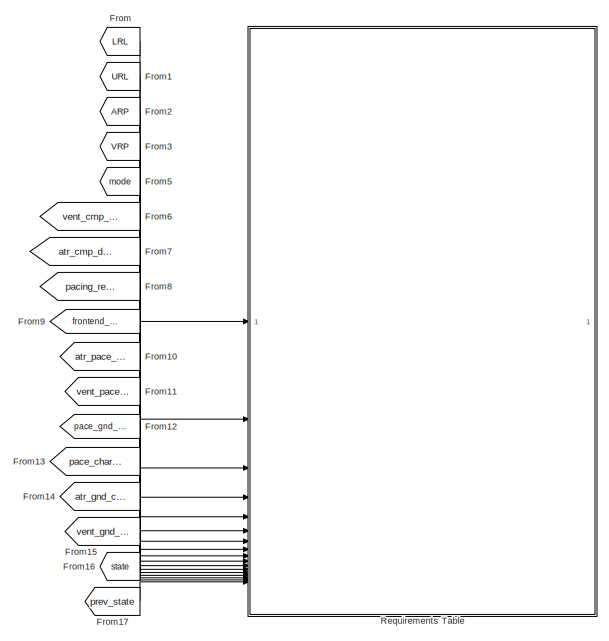
[diagram: root canvas - part 1/2, right side, full height]
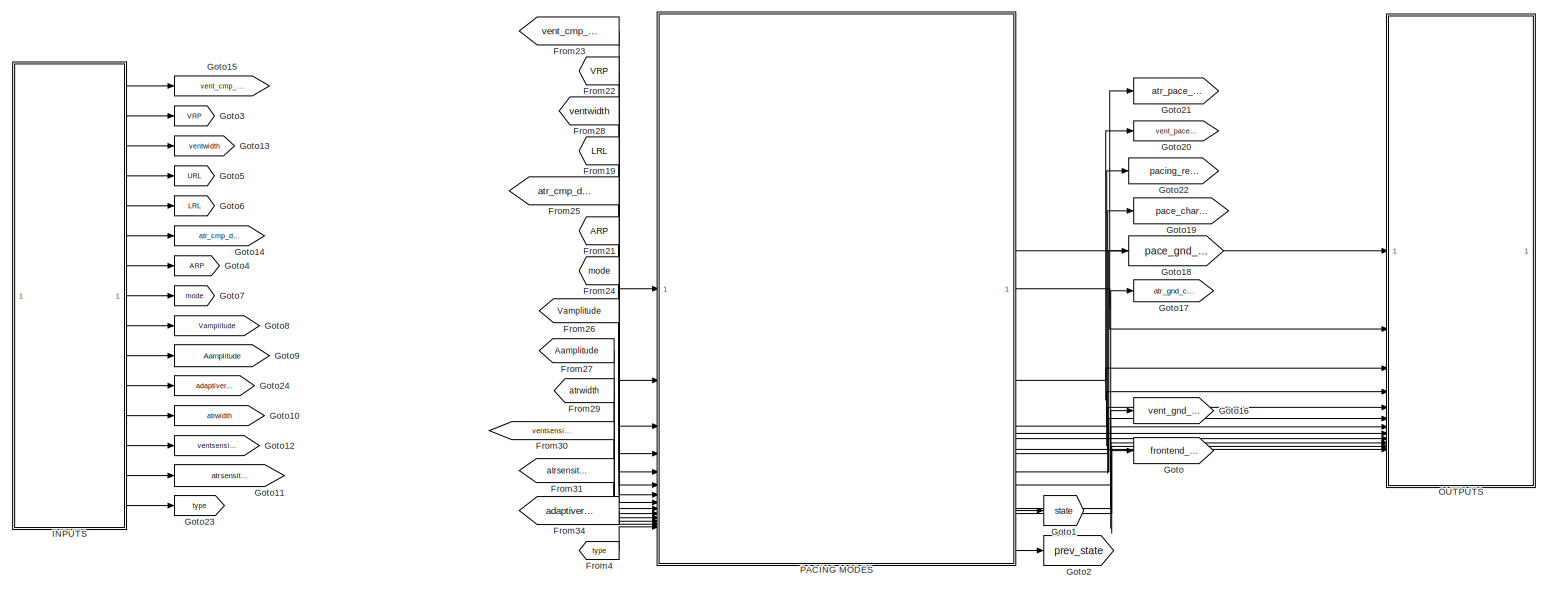
[diagram: root canvas - part 2/2, center side, full height]
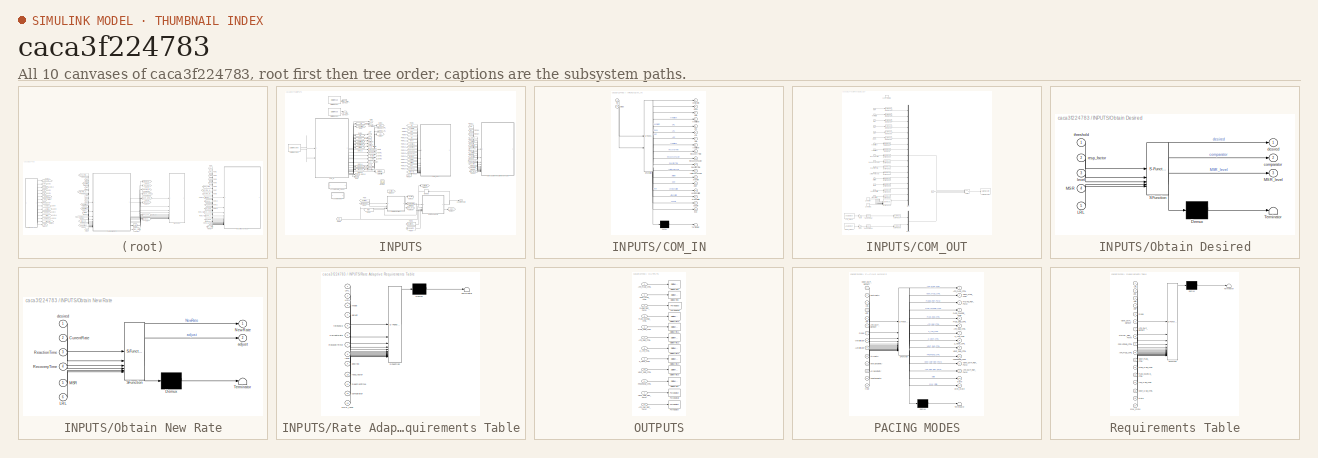
[diagram: thumbnail index - all 10 canvases of the model, root first then tree order]
MODEL slx_caca3f224783
KIND model
CONFIG AbsTol = auto
CONFIG EnableMultiTasking = on
CONFIG FixedStep = 1e-3
CONFIG MaxStep = auto
CONFIG MinStep = auto
CONFIG RelTol = 1e-3
CONFIG SampleTimeConstraint = Unconstrained
CONFIG SolverName = FixedStepAuto
CONFIG StartTime = 0.0
CONFIG StopTime = 2
BLOCK [From] From
  GotoTag = LRL
BLOCK [From] From1
  GotoTag = URL
BLOCK [From] From10
  GotoTag = atr_pace_ctrl
BLOCK [From] From11
  GotoTag = vent_pace_ctrl
BLOCK [From] From12
  GotoTag = pace_gnd_ctrl
BLOCK [From] From13
  GotoTag = pace_charge_ctrl
BLOCK [From] From14
  GotoTag = atr_gnd_ctrl
BLOCK [From] From15
  GotoTag = vent_gnd_ctrl
BLOCK [From] From16
  GotoTag = state
BLOCK [From] From17
  GotoTag = prev_state
BLOCK [From] From19
  GotoTag = LRL
BLOCK [From] From2
  GotoTag = ARP
BLOCK [From] From21
  GotoTag = ARP
BLOCK [From] From22
  GotoTag = VRP
BLOCK [From] From23
  GotoTag = vent_cmp_detect
BLOCK [From] From24
  GotoTag = mode
BLOCK [From] From25
  GotoTag = atr_cmp_detect
BLOCK [From] From26
  GotoTag = Vamplitude
BLOCK [From] From27
  GotoTag = Aamplitude
BLOCK [From] From28
  GotoTag = ventwidth
BLOCK [From] From29
  GotoTag = atrwidth
BLOCK [From] From3
  GotoTag = VRP
BLOCK [From] From30
  GotoTag = ventsensitivity
BLOCK [From] From31
  GotoTag = atrsensitivity
BLOCK [From] From34
  GotoTag = adaptiverate
BLOCK [From] From4
  GotoTag = type
BLOCK [From] From5
  GotoTag = mode
BLOCK [From] From6
  GotoTag = vent_cmp_detect
BLOCK [From] From7
  GotoTag = atr_cmp_detect
BLOCK [From] From8
  GotoTag = pacing_ref_pwm
BLOCK [From] From9
  GotoTag = frontend_ctrl
BLOCK [Goto] Goto
  GotoTag = frontend_ctrl
BLOCK [Goto] Goto1
  GotoTag = state
BLOCK [Goto] Goto10
  GotoTag = atrwidth
BLOCK [Goto] Goto11
  GotoTag = atrsensitivity
BLOCK [Goto] Goto12
  GotoTag = ventsensitivity
BLOCK [Goto] Goto13
  GotoTag = ventwidth
BLOCK [Goto] Goto14
  GotoTag = atr_cmp_detect
BLOCK [Goto] Goto15
  GotoTag = vent_cmp_detect
BLOCK [Goto] Goto16
  GotoTag = vent_gnd_ctrl
BLOCK [Goto] Goto17
  GotoTag = atr_gnd_ctrl
BLOCK [Goto] Goto18
  GotoTag = pace_gnd_ctrl
BLOCK [Goto] Goto19
  GotoTag = pace_charge_ctrl
BLOCK [Goto] Goto2
  GotoTag = prev_state
BLOCK [Goto] Goto20
  GotoTag = vent_pace_ctrl
BLOCK [Goto] Goto21
  GotoTag = atr_pace_ctrl
BLOCK [Goto] Goto22
  GotoTag = pacing_ref_pwm
BLOCK [Goto] Goto23
  GotoTag = type
BLOCK [Goto] Goto24
  GotoTag = adaptiverate
BLOCK [Goto] Goto3
  GotoTag = VRP
BLOCK [Goto] Goto4
  GotoTag = ARP
BLOCK [Goto] Goto5
  GotoTag = URL
BLOCK [Goto] Goto6
  GotoTag = LRL
BLOCK [Goto] Goto7
  GotoTag = mode
BLOCK [Goto] Goto8
  GotoTag = Vamplitude
BLOCK [Goto] Goto9
  GotoTag = Aamplitude
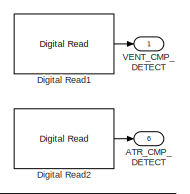
[diagram: INPUTS - part 1/4, top left region]
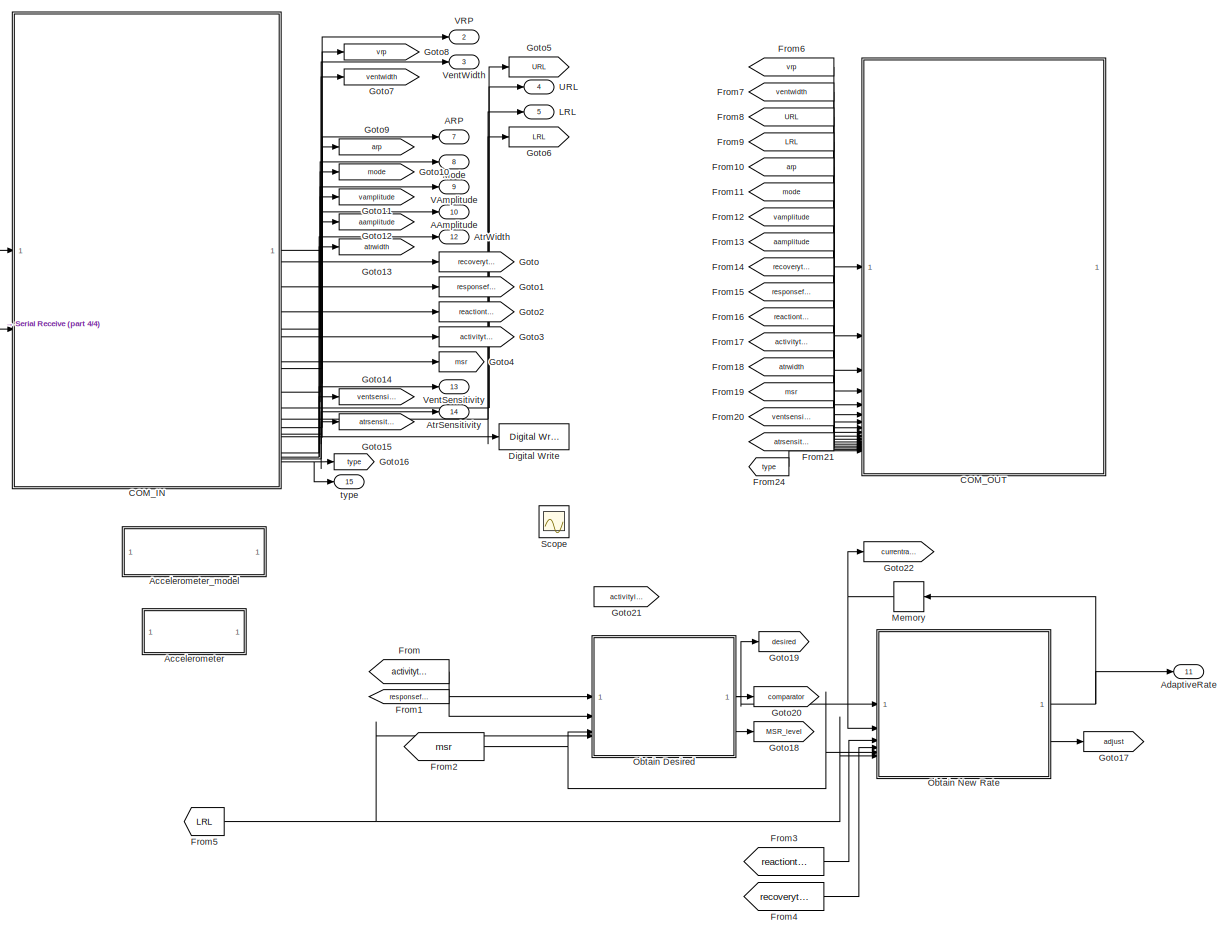
[diagram: INPUTS - part 2/4, center side, full height]
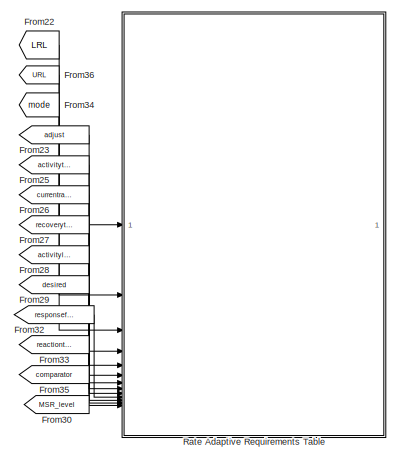
[diagram: INPUTS - part 3/4, middle right region]
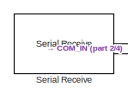
[diagram: INPUTS - part 4/4, middle left region]
BLOCK [SubSystem] INPUTS
BLOCK [Outport] INPUTS/AAmplitude
  OutDataTypeStr = double
  Port = 10
BLOCK [Outport] INPUTS/ARP
  OutDataTypeStr = double
  Port = 7
BLOCK [Outport] INPUTS/ATR_CMP_DETECT
  OutDataTypeStr = boolean
  Port = 6
BLOCK [SubSystem] INPUTS/Accelerometer
  Commented = on
  ReferencedSubsystem = accelerometer
BLOCK [ModelReference] INPUTS/Accelerometer_model
  Commented = on
  ModelNameDialog = accel
  ModelReferenceVersion = 2.0
BLOCK [Outport] INPUTS/AdaptiveRate
  Port = 11
BLOCK [Outport] INPUTS/AtrSensitivity
  Port = 14
BLOCK [Outport] INPUTS/AtrWidth
  OutDataTypeStr = int16
  Port = 12
BLOCK [SubSystem] INPUTS/COM_IN
  ErrorFcn = Stateflow.Translate.translate
  PermitHierarchicalResolution = ExplicitOnly
  PortSchema = {"entries":[{"content":{"sides":[{"content":{"connectorIds":["In1","In2"]},"type":"ConnectorPlacement.EquallySpacedRectSide","uuid":"eafe7878-2647-49a4-97cb-41e68478fa40"},{"content":{"connectorIds":["Out3","Out1","Out5","Out6","Out7","Out2","Out4","Out8","Out13","Out9","Out10","Out11","Out12","Out14","Out15","Out16","Out17","Out18"],"side":"RIGHT"},"type":"ConnectorPlacement.EquallySpacedRectSide...<+374ch>
  SFBlockType = Chart
  TreatAsAtomicUnit = on
BLOCK [Demux] INPUTS/COM_IN/ Demux 
  Outputs = 1
BLOCK [S-Function] INPUTS/COM_IN/ SFunction 
  EnableBusSupport = on
  FunctionName = sf_sfun
  PortCounts = [2 19]
  SFcnIsStateOwnerBlock = off
  SFunctionDeploymentMode = off
  Tag = Stateflow S-Function 7
BLOCK [Terminator] INPUTS/COM_IN/ Terminator 
BLOCK [Outport] INPUTS/COM_IN/AAmplitude
  Port = 8
BLOCK [Outport] INPUTS/COM_IN/ARP
  Port = 7
BLOCK [Outport] INPUTS/COM_IN/ActivityThreshold
  Port = 12
BLOCK [Outport] INPUTS/COM_IN/AtrSensitivity
  Port = 16
BLOCK [Outport] INPUTS/COM_IN/AtrWidth
  Port = 13
BLOCK [Outport] INPUTS/COM_IN/LRL
  Port = 6
BLOCK [Outport] INPUTS/COM_IN/MSR
  Port = 14
BLOCK [Outport] INPUTS/COM_IN/ReactionTime
  Port = 11
BLOCK [Outport] INPUTS/COM_IN/RecoveryTime
  Port = 9
BLOCK [Outport] INPUTS/COM_IN/ResponseFactor
  Port = 10
BLOCK [Inport] INPUTS/COM_IN/Rx
BLOCK [Outport] INPUTS/COM_IN/URL
  Port = 5
BLOCK [Outport] INPUTS/COM_IN/VAmplitude
  Port = 4
BLOCK [Outport] INPUTS/COM_IN/VRP
  Port = 3
BLOCK [Outport] INPUTS/COM_IN/VentSensitivity
  Port = 15
BLOCK [Outport] INPUTS/COM_IN/VentWidth
BLOCK [Outport] INPUTS/COM_IN/mode
  Port = 2
BLOCK [Inport] INPUTS/COM_IN/status
  Port = 2
BLOCK [Outport] INPUTS/COM_IN/type
  Port = 18
BLOCK [Outport] INPUTS/COM_IN/update
  Port = 17
BLOCK [SubSystem] INPUTS/COM_OUT
  TreatAsAtomicUnit = on
BLOCK [Inport] INPUTS/COM_OUT/AAmplitude
  OutDataTypeStr = double
  Port = 8
BLOCK [Inport] INPUTS/COM_OUT/ARP
  OutDataTypeStr = double
  Port = 5
BLOCK [Reference] INPUTS/COM_OUT/ATR_SIGNAL  REF=frdmk64flib/Analog Input
  SourceBlock = frdmk64flib/Analog Input
  SourceType = freedomk64f.AnalogInput
BLOCK [Inport] INPUTS/COM_OUT/ActivityThreshold
  OutDataTypeStr = double
  Port = 12
BLOCK [Inport] INPUTS/COM_OUT/AtrSensitivity
  OutDataTypeStr = double
  Port = 16
BLOCK [Inport] INPUTS/COM_OUT/AtrWidth
  OutDataTypeStr = int16
  Port = 13
BLOCK [Reference] INPUTS/COM_OUT/Byte Pack  REF=etargetslib/Byte Pack
  LibrarySourceBlock = embeddedtargetslib/Host Communication/Byte Pack
  SourceBlock = etargetslib/Byte Pack
  SourceType = Byte pack
BLOCK [Reference] INPUTS/COM_OUT/Byte Pack1  REF=etargetslib/Byte Pack
  LibrarySourceBlock = embeddedtargetslib/Host Communication/Byte Pack
  SourceBlock = etargetslib/Byte Pack
  SourceType = Byte pack
BLOCK [Reference] INPUTS/COM_OUT/Byte Pack10  REF=etargetslib/Byte Pack
  LibrarySourceBlock = embeddedtargetslib/Host Communication/Byte Pack
  SourceBlock = etargetslib/Byte Pack
  SourceType = Byte pack
BLOCK [Reference] INPUTS/COM_OUT/Byte Pack11  REF=etargetslib/Byte Pack
  LibrarySourceBlock = embeddedtargetslib/Host Communication/Byte Pack
  SourceBlock = etargetslib/Byte Pack
  SourceType = Byte pack
BLOCK [Reference] INPUTS/COM_OUT/Byte Pack12  REF=etargetslib/Byte Pack
  LibrarySourceBlock = embeddedtargetslib/Host Communication/Byte Pack
  SourceBlock = etargetslib/Byte Pack
  SourceType = Byte pack
BLOCK [Reference] INPUTS/COM_OUT/Byte Pack13  REF=etargetslib/Byte Pack
  LibrarySourceBlock = embeddedtargetslib/Host Communication/Byte Pack
  SourceBlock = etargetslib/Byte Pack
  SourceType = Byte pack
BLOCK [Reference] INPUTS/COM_OUT/Byte Pack14  REF=etargetslib/Byte Pack
  LibrarySourceBlock = embeddedtargetslib/Host Communication/Byte Pack
  SourceBlock = etargetslib/Byte Pack
  SourceType = Byte pack
BLOCK [Reference] INPUTS/COM_OUT/Byte Pack15  REF=etargetslib/Byte Pack
  LibrarySourceBlock = embeddedtargetslib/Host Communication/Byte Pack
  SourceBlock = etargetslib/Byte Pack
  SourceType = Byte pack
BLOCK [Reference] INPUTS/COM_OUT/Byte Pack16  REF=etargetslib/Byte Pack
  LibrarySourceBlock = embeddedtargetslib/Host Communication/Byte Pack
  SourceBlock = etargetslib/Byte Pack
  SourceType = Byte pack
BLOCK [Reference] INPUTS/COM_OUT/Byte Pack17  REF=etargetslib/Byte Pack
  LibrarySourceBlock = embeddedtargetslib/Host Communication/Byte Pack
  SourceBlock = etargetslib/Byte Pack
  SourceType = Byte pack
BLOCK [Reference] INPUTS/COM_OUT/Byte Pack18  REF=etargetslib/Byte Pack
  LibrarySourceBlock = embeddedtargetslib/Host Communication/Byte Pack
  SourceBlock = etargetslib/Byte Pack
  SourceType = Byte pack
BLOCK [Reference] INPUTS/COM_OUT/Byte Pack2  REF=etargetslib/Byte Pack
  LibrarySourceBlock = embeddedtargetslib/Host Communication/Byte Pack
  SourceBlock = etargetslib/Byte Pack
  SourceType = Byte pack
BLOCK [Reference] INPUTS/COM_OUT/Byte Pack3  REF=etargetslib/Byte Pack
  LibrarySourceBlock = embeddedtargetslib/Host Communication/Byte Pack
  SourceBlock = etargetslib/Byte Pack
  SourceType = Byte pack
BLOCK [Reference] INPUTS/COM_OUT/Byte Pack4  REF=etargetslib/Byte Pack
  LibrarySourceBlock = embeddedtargetslib/Host Communication/Byte Pack
  SourceBlock = etargetslib/Byte Pack
  SourceType = Byte pack
BLOCK [Reference] INPUTS/COM_OUT/Byte Pack5  REF=etargetslib/Byte Pack
  LibrarySourceBlock = embeddedtargetslib/Host Communication/Byte Pack
  SourceBlock = etargetslib/Byte Pack
  SourceType = Byte pack
BLOCK [Reference] INPUTS/COM_OUT/Byte Pack6  REF=etargetslib/Byte Pack
  LibrarySourceBlock = embeddedtargetslib/Host Communication/Byte Pack
  SourceBlock = etargetslib/Byte Pack
  SourceType = Byte pack
BLOCK [Reference] INPUTS/COM_OUT/Byte Pack7  REF=etargetslib/Byte Pack
  LibrarySourceBlock = embeddedtargetslib/Host Communication/Byte Pack
  SourceBlock = etargetslib/Byte Pack
  SourceType = Byte pack
BLOCK [Reference] INPUTS/COM_OUT/Byte Pack8  REF=etargetslib/Byte Pack
  LibrarySourceBlock = embeddedtargetslib/Host Communication/Byte Pack
  SourceBlock = etargetslib/Byte Pack
  SourceType = Byte pack
BLOCK [Reference] INPUTS/COM_OUT/Byte Pack9  REF=etargetslib/Byte Pack
  LibrarySourceBlock = embeddedtargetslib/Host Communication/Byte Pack
  SourceBlock = etargetslib/Byte Pack
  SourceType = Byte pack
BLOCK [Constant] INPUTS/COM_OUT/Constant
  OutDataTypeStr = double
BLOCK [Constant] INPUTS/COM_OUT/Constant1
  OutDataTypeStr = int16
BLOCK [Gain] INPUTS/COM_OUT/Gain
  Gain = 5
BLOCK [Gain] INPUTS/COM_OUT/Gain1
  Gain = 5
BLOCK [Inport] INPUTS/COM_OUT/LRL
  OutDataTypeStr = double
  Port = 4
BLOCK [Inport] INPUTS/COM_OUT/MSR
  OutDataTypeStr = double
  Port = 14
BLOCK [Mux] INPUTS/COM_OUT/Mux
  DisplayOption = bar
  Inputs = 17
BLOCK [Mux] INPUTS/COM_OUT/Mux1
  DisplayOption = bar
  Inputs = 2
BLOCK [Inport] INPUTS/COM_OUT/ReactionTime
  OutDataTypeStr = double
  Port = 11
BLOCK [Inport] INPUTS/COM_OUT/RecoveryTime
  OutDataTypeStr = double
  Port = 9
BLOCK [Inport] INPUTS/COM_OUT/ResponseFactor
  OutDataTypeStr = double
  Port = 10
BLOCK [Reference] INPUTS/COM_OUT/Serial Transmit  REF=frdmk64flib/Serial Transmit
  SourceBlock = frdmk64flib/Serial Transmit
  SourceType = freedomk64f.SCIWrite
BLOCK [Switch] INPUTS/COM_OUT/Switch
  Criteria = u2 > Threshold
  InputSameDT = off
  SaturateOnIntegerOverflow = off
BLOCK [Reference] INPUTS/COM_OUT/Tapped Delay  REF=simulink/Discrete/Tapped Delay
  SourceBlock = simulink/Discrete/Tapped Delay
  SourceType = Tapped Delay Line
BLOCK [Reference] INPUTS/COM_OUT/Tapped Delay1  REF=simulink/Discrete/Tapped Delay
  SourceBlock = simulink/Discrete/Tapped Delay
  SourceType = Tapped Delay Line
BLOCK [Inport] INPUTS/COM_OUT/URL
  OutDataTypeStr = double
  Port = 3
BLOCK [Inport] INPUTS/COM_OUT/VAmplitude
  OutDataTypeStr = double
  Port = 7
BLOCK [Reference] INPUTS/COM_OUT/VENT_SIGNAL  REF=frdmk64flib/Analog Input
  SourceBlock = frdmk64flib/Analog Input
  SourceType = freedomk64f.AnalogInput
BLOCK [Inport] INPUTS/COM_OUT/VRP
  OutDataTypeStr = double
BLOCK [Inport] INPUTS/COM_OUT/VentSensitivity
  OutDataTypeStr = double
  Port = 15
BLOCK [Inport] INPUTS/COM_OUT/VentWidth
  OutDataTypeStr = int16
  Port = 2
BLOCK [Inport] INPUTS/COM_OUT/mode
  OutDataTypeStr = int16
  Port = 6
BLOCK [TriggerPort] INPUTS/COM_OUT/send_params
  FunctionName = send_params
  IsSimulinkFunction = on
  StatesWhenEnabling = held
  TriggerType = function-call
  VariantControl = (inherit)
BLOCK [Inport] INPUTS/COM_OUT/type
  Port = 17
BLOCK [Reference] INPUTS/Digital Read1  REF=frdmk64flib/Digital Read
  SourceBlock = frdmk64flib/Digital Read
  SourceType = freedomk64f.DigitalRead
BLOCK [Reference] INPUTS/Digital Read2  REF=frdmk64flib/Digital Read
  SourceBlock = frdmk64flib/Digital Read
  SourceType = freedomk64f.DigitalRead
BLOCK [Reference] INPUTS/Digital Write  REF=frdmk64flib/Digital Write
  SourceBlock = frdmk64flib/Digital Write
  SourceType = freedomk64f.DigitalWrite
BLOCK [From] INPUTS/From
  GotoTag = activitythresh
BLOCK [From] INPUTS/From1
  GotoTag = responsefactor
BLOCK [From] INPUTS/From10
  GotoTag = arp
BLOCK [From] INPUTS/From11
  GotoTag = mode
BLOCK [From] INPUTS/From12
  GotoTag = vamplitude
BLOCK [From] INPUTS/From13
  GotoTag = aamplitude
BLOCK [From] INPUTS/From14
  GotoTag = recoverytime
BLOCK [From] INPUTS/From15
  GotoTag = responsefactor
BLOCK [From] INPUTS/From16
  GotoTag = reactiontime
BLOCK [From] INPUTS/From17
  GotoTag = activitythresh
BLOCK [From] INPUTS/From18
  GotoTag = atrwidth
BLOCK [From] INPUTS/From19
  GotoTag = msr
BLOCK [From] INPUTS/From2
  GotoTag = msr
BLOCK [From] INPUTS/From20
  GotoTag = ventsensitivity
BLOCK [From] INPUTS/From21
  GotoTag = atrsensitivity
BLOCK [From] INPUTS/From22
  GotoTag = LRL
BLOCK [From] INPUTS/From23
  GotoTag = adjust
BLOCK [From] INPUTS/From24
  GotoTag = type
BLOCK [From] INPUTS/From25
  GotoTag = activitythresh
BLOCK [From] INPUTS/From26
  GotoTag = currentrate
BLOCK [From] INPUTS/From27
  GotoTag = recoverytime
BLOCK [From] INPUTS/From28
  GotoTag = activitylevel
BLOCK [From] INPUTS/From29
  GotoTag = desired
BLOCK [From] INPUTS/From3
  GotoTag = reactiontime
BLOCK [From] INPUTS/From30
  GotoTag = MSR_level
BLOCK [From] INPUTS/From32
  GotoTag = responsefactor
BLOCK [From] INPUTS/From33
  GotoTag = reactiontime
BLOCK [From] INPUTS/From34
  GotoTag = mode
BLOCK [From] INPUTS/From35
  GotoTag = comparator
BLOCK [From] INPUTS/From36
  GotoTag = URL
BLOCK [From] INPUTS/From4
  GotoTag = recoverytime
BLOCK [From] INPUTS/From5
  GotoTag = LRL
BLOCK [From] INPUTS/From6
  GotoTag = vrp
BLOCK [From] INPUTS/From7
  GotoTag = ventwidth
BLOCK [From] INPUTS/From8
  GotoTag = URL
BLOCK [From] INPUTS/From9
  GotoTag = LRL
BLOCK [Goto] INPUTS/Goto
  GotoTag = recoverytime
BLOCK [Goto] INPUTS/Goto1
  GotoTag = responsefactor
BLOCK [Goto] INPUTS/Goto10
  GotoTag = mode
BLOCK [Goto] INPUTS/Goto11
  GotoTag = vamplitude
BLOCK [Goto] INPUTS/Goto12
  GotoTag = aamplitude
BLOCK [Goto] INPUTS/Goto13
  GotoTag = atrwidth
BLOCK [Goto] INPUTS/Goto14
  GotoTag = ventsensitivity
BLOCK [Goto] INPUTS/Goto15
  GotoTag = atrsensitivity
BLOCK [Goto] INPUTS/Goto16
  GotoTag = type
BLOCK [Goto] INPUTS/Goto17
  GotoTag = adjust
BLOCK [Goto] INPUTS/Goto18
  GotoTag = MSR_level
BLOCK [Goto] INPUTS/Goto19
  GotoTag = desired
BLOCK [Goto] INPUTS/Goto2
  GotoTag = reactiontime
BLOCK [Goto] INPUTS/Goto20
  GotoTag = comparator
BLOCK [Goto] INPUTS/Goto21
  GotoTag = activitylevel
BLOCK [Goto] INPUTS/Goto22
  GotoTag = currentrate
BLOCK [Goto] INPUTS/Goto3
  GotoTag = activitythresh
BLOCK [Goto] INPUTS/Goto4
  GotoTag = msr
BLOCK [Goto] INPUTS/Goto5
  GotoTag = URL
BLOCK [Goto] INPUTS/Goto6
  GotoTag = LRL
BLOCK [Goto] INPUTS/Goto7
  GotoTag = ventwidth
BLOCK [Goto] INPUTS/Goto8
  GotoTag = vrp
BLOCK [Goto] INPUTS/Goto9
  GotoTag = arp
BLOCK [Outport] INPUTS/LRL
  OutDataTypeStr = double
  Port = 5
BLOCK [Memory] INPUTS/Memory
  InheritSampleTime = on
BLOCK [Outport] INPUTS/Mode
  OutDataTypeStr = int16
  Port = 8
BLOCK [SubSystem] INPUTS/Obtain Desired
  ErrorFcn = Stateflow.Translate.translate
  PermitHierarchicalResolution = ExplicitOnly
  PortSchema = {"entries":[{"content":{"sides":[{"content":{"connectorIds":["In3","In1","In2","In5","In4"]},"type":"ConnectorPlacement.EquallySpacedRectSide","uuid":"5c134849-3d1d-4c56-8571-ceae08da9f45"},{"content":{"connectorIds":["Out1","Out2","Out3"],"side":"RIGHT"},"type":"ConnectorPlacement.EquallySpacedRectSide","uuid":"7618640d-b82a-4535-8229-36335d1597eb"},{"content":{"connectorIds":[],"side":"TOP"},"ty...<+278ch>
  SFBlockType = Chart
  TreatAsAtomicUnit = on
BLOCK [Demux] INPUTS/Obtain Desired/ Demux 
  Outputs = 1
BLOCK [S-Function] INPUTS/Obtain Desired/ SFunction 
  EnableBusSupport = on
  FunctionName = sf_sfun
  PortCounts = [5 4]
  SFcnIsStateOwnerBlock = off
  SFunctionDeploymentMode = off
  Tag = Stateflow S-Function 5
BLOCK [Terminator] INPUTS/Obtain Desired/ Terminator 
BLOCK [Inport] INPUTS/Obtain Desired/LRL
  Port = 5
BLOCK [Inport] INPUTS/Obtain Desired/MSR
  Port = 4
BLOCK [Outport] INPUTS/Obtain Desired/MSR_level
  Port = 3
BLOCK [Outport] INPUTS/Obtain Desired/comparator
  Port = 2
BLOCK [Outport] INPUTS/Obtain Desired/desired
BLOCK [Inport] INPUTS/Obtain Desired/level
  Port = 3
BLOCK [Inport] INPUTS/Obtain Desired/resp_factor
  Port = 2
BLOCK [Inport] INPUTS/Obtain Desired/threshold
BLOCK [SubSystem] INPUTS/Obtain New Rate
  ErrorFcn = Stateflow.Translate.translate
  PermitHierarchicalResolution = ExplicitOnly
  PortSchema = {"entries":[{"content":{"sides":[{"content":{"connectorIds":["In2","In1","In5","In6","In3","In4"]},"type":"ConnectorPlacement.EquallySpacedRectSide","uuid":"1d91cfe0-cd55-4bdf-aa16-d6a917e51e7e"},{"content":{"connectorIds":["Out1","Out2"],"side":"RIGHT"},"type":"ConnectorPlacement.EquallySpacedRectSide","uuid":"e994e035-8773-49d5-b660-bbaeb9e2bece"},{"content":{"connectorIds":[],"side":"TOP"},"typ...<+277ch>
  SFBlockType = Chart
  TreatAsAtomicUnit = on
BLOCK [Demux] INPUTS/Obtain New Rate/ Demux 
  Outputs = 1
BLOCK [S-Function] INPUTS/Obtain New Rate/ SFunction 
  EnableBusSupport = on
  FunctionName = sf_sfun
  PortCounts = [6 3]
  SFcnIsStateOwnerBlock = off
  SFunctionDeploymentMode = off
  Tag = Stateflow S-Function 6
BLOCK [Terminator] INPUTS/Obtain New Rate/ Terminator 
BLOCK [Inport] INPUTS/Obtain New Rate/CurrentRate
  Port = 2
BLOCK [Inport] INPUTS/Obtain New Rate/LRL
  Port = 6
BLOCK [Inport] INPUTS/Obtain New Rate/MSR
  Port = 5
BLOCK [Outport] INPUTS/Obtain New Rate/NewRate
BLOCK [Inport] INPUTS/Obtain New Rate/ReactionTime
  Port = 3
BLOCK [Inport] INPUTS/Obtain New Rate/RecoveryTime
  Port = 4
BLOCK [Outport] INPUTS/Obtain New Rate/adjust
  Port = 2
BLOCK [Inport] INPUTS/Obtain New Rate/desired
BLOCK [SubSystem] INPUTS/Rate Adaptive Requirements Table
  Commented = on
  ErrorFcn = Stateflow.Translate.translate
  PermitHierarchicalResolution = ExplicitOnly
  SFBlockType = Requirements Table
  TreatAsAtomicUnit = on
BLOCK [Demux] INPUTS/Rate Adaptive Requirements Table/ Demux 
  Outputs = 1
BLOCK [S-Function] INPUTS/Rate Adaptive Requirements Table/ SFunction 
  EnableBusSupport = on
  FunctionName = sf_sfun
  PortCounts = [13 1]
  SFcnIsStateOwnerBlock = off
  SFunctionDeploymentMode = off
  Tag = Stateflow S-Function 1
BLOCK [Terminator] INPUTS/Rate Adaptive Requirements Table/ Terminator 
BLOCK [Inport] INPUTS/Rate Adaptive Requirements Table/CurrentRate
  Port = 6
BLOCK [Inport] INPUTS/Rate Adaptive Requirements Table/LRL
BLOCK [Inport] INPUTS/Rate Adaptive Requirements Table/MSR_level
  Port = 13
BLOCK [Inport] INPUTS/Rate Adaptive Requirements Table/ReactionTime
  Port = 11
BLOCK [Inport] INPUTS/Rate Adaptive Requirements Table/RecoveryTime
  Port = 7
BLOCK [Inport] INPUTS/Rate Adaptive Requirements Table/URL
  Port = 2
BLOCK [Inport] INPUTS/Rate Adaptive Requirements Table/adjust
  Port = 4
BLOCK [Inport] INPUTS/Rate Adaptive Requirements Table/comparator
  Port = 12
BLOCK [Inport] INPUTS/Rate Adaptive Requirements Table/desired
  Port = 9
BLOCK [Inport] INPUTS/Rate Adaptive Requirements Table/level
  Port = 8
BLOCK [Inport] INPUTS/Rate Adaptive Requirements Table/mode
  Port = 3
BLOCK [Inport] INPUTS/Rate Adaptive Requirements Table/resp_factor
  Port = 10
BLOCK [Inport] INPUTS/Rate Adaptive Requirements Table/threshold
  Port = 5
BLOCK [Scope] INPUTS/Scope
  Floating = off
  NumInputPorts = 1
  ScopeSpecificationString = Simulink.scopes.TimeScopeBlockCfg('CurrentConfiguration', extmgr.ConfigurationSet(extmgr.Configuration('Core','General UI',true),extmgr.Configuration('Core','Source UI',true),extmgr.Configuration('Sources','WiredSimulink',true),extmgr.Configuration('Visuals','Time Domain',true),extmgr.Configuration('Tools','Plot Navigation',true),extmgr.Configuration('Tools','Measurements',true)),'Version','2022b'...<+1ch>
BLOCK [Reference] INPUTS/Serial Receive  REF=frdmk64flib/Serial Receive
  SourceBlock = frdmk64flib/Serial Receive
  SourceType = freedomk64f.SCIRead
BLOCK [Outport] INPUTS/URL
  OutDataTypeStr = double
  Port = 4
BLOCK [Outport] INPUTS/VAmplitude
  OutDataTypeStr = double
  Port = 9
BLOCK [Outport] INPUTS/VENT_CMP_DETECT
  OutDataTypeStr = boolean
BLOCK [Outport] INPUTS/VRP
  OutDataTypeStr = double
  Port = 2
BLOCK [Outport] INPUTS/VentSensitivity
  Port = 13
BLOCK [Outport] INPUTS/VentWidth
  OutDataTypeStr = int16
  Port = 3
BLOCK [Outport] INPUTS/type
  Port = 15
BLOCK [SubSystem] OUTPUTS
BLOCK [Inport] OUTPUTS/ATR_CMP_REF_PWM
  OutDataTypeStr = double
  Port = 12
BLOCK [Inport] OUTPUTS/ATR_GND_CTRL
  OutDataTypeStr = boolean
  Port = 7
BLOCK [Inport] OUTPUTS/ATR_PACE_CTRL
  OutDataTypeStr = boolean
  Port = 2
BLOCK [Reference] OUTPUTS/Digital Write1  REF=frdmk64flib/Digital Write
  SourceBlock = frdmk64flib/Digital Write
  SourceType = freedomk64f.DigitalWrite
BLOCK [Reference] OUTPUTS/Digital Write10  REF=frdmk64flib/Digital Write
  SourceBlock = frdmk64flib/Digital Write
  SourceType = freedomk64f.DigitalWrite
BLOCK [Reference] OUTPUTS/Digital Write11  REF=frdmk64flib/Digital Write
  SourceBlock = frdmk64flib/Digital Write
  SourceType = freedomk64f.DigitalWrite
BLOCK [Reference] OUTPUTS/Digital Write12  REF=frdmk64flib/Digital Write
  SourceBlock = frdmk64flib/Digital Write
  SourceType = freedomk64f.DigitalWrite
BLOCK [Reference] OUTPUTS/Digital Write13  REF=frdmk64flib/Digital Write
  SourceBlock = frdmk64flib/Digital Write
  SourceType = freedomk64f.DigitalWrite
BLOCK [Reference] OUTPUTS/Digital Write14  REF=frdmk64flib/Digital Write
  SourceBlock = frdmk64flib/Digital Write
  SourceType = freedomk64f.DigitalWrite
BLOCK [Reference] OUTPUTS/Digital Write15  REF=frdmk64flib/Digital Write
  SourceBlock = frdmk64flib/Digital Write
  SourceType = freedomk64f.DigitalWrite
BLOCK [Reference] OUTPUTS/Digital Write8  REF=frdmk64flib/Digital Write
  SourceBlock = frdmk64flib/Digital Write
  SourceType = freedomk64f.DigitalWrite
BLOCK [Reference] OUTPUTS/Digital Write9  REF=frdmk64flib/Digital Write
  SourceBlock = frdmk64flib/Digital Write
  SourceType = freedomk64f.DigitalWrite
BLOCK [Inport] OUTPUTS/FRONTEND_CTRL
  OutDataTypeStr = boolean
  Port = 11
BLOCK [Inport] OUTPUTS/PACE_CHARGE_CTRL
  OutDataTypeStr = boolean
  Port = 5
BLOCK [Inport] OUTPUTS/PACE_GND_CTRL
  OutDataTypeStr = boolean
  Port = 6
BLOCK [Inport] OUTPUTS/PACING_REF_PWM
  OutDataTypeStr = double
  Port = 4
BLOCK [Reference] OUTPUTS/PWM Output  REF=frdmk64flib/PWM Output
  SourceBlock = frdmk64flib/PWM Output
  SourceType = freedomk64f.PWMOutput
BLOCK [Reference] OUTPUTS/PWM Output2  REF=frdmk64flib/PWM Output
  SourceBlock = frdmk64flib/PWM Output
  SourceType = freedomk64f.PWMOutput
BLOCK [Reference] OUTPUTS/PWM Output3  REF=frdmk64flib/PWM Output
  SourceBlock = frdmk64flib/PWM Output
  SourceType = freedomk64f.PWMOutput
BLOCK [Inport] OUTPUTS/VENT_CMP_REF_PWM
  OutDataTypeStr = double
BLOCK [Inport] OUTPUTS/VENT_GND_CTRL
  OutDataTypeStr = boolean
  Port = 10
BLOCK [Inport] OUTPUTS/VENT_PACE_CTRL
  OutDataTypeStr = boolean
  Port = 3
BLOCK [Inport] OUTPUTS/Z_ATR_CTRL
  OutDataTypeStr = boolean
  Port = 8
BLOCK [Inport] OUTPUTS/Z_VENT_CTRL
  OutDataTypeStr = boolean
  Port = 9
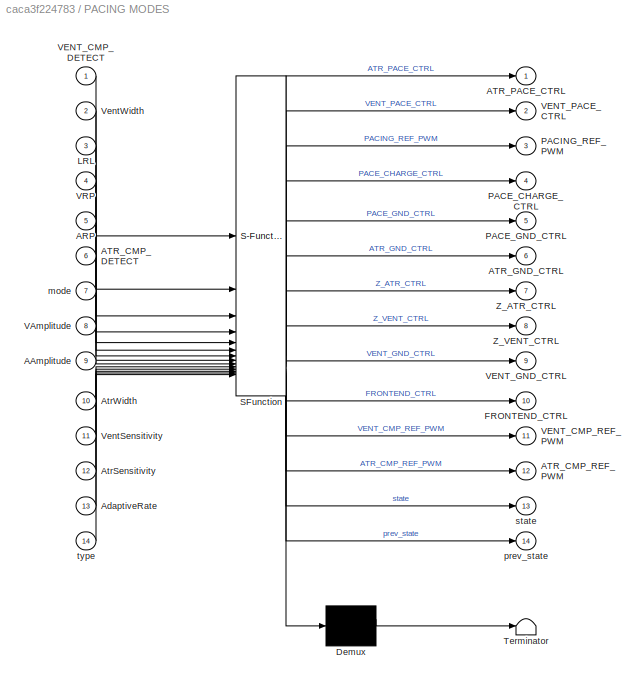
BLOCK [SubSystem] PACING MODES
  ErrorFcn = Stateflow.Translate.translate
  PermitHierarchicalResolution = ExplicitOnly
  PortSchema = {"entries":[{"content":{"sides":[{"content":{"connectorIds":["In1","In4","In2","In3","In6","In5","In7","In8","In9","In10","In11","In12","In13","In14"]},"type":"ConnectorPlacement.EquallySpacedRectSide","uuid":"24afec03-bc13-4065-9064-27bef3c43f7a"},{"content":{"connectorIds":["Out11","Out1","Out2","Out3","Out4","Out5","Out6","Out7","Out8","Out9","Out10","Out12","Out13","Out14"],"side":"RIGHT"},"ty...<+563ch>
  SFBlockType = Chart
  TreatAsAtomicUnit = on
BLOCK [Demux] PACING MODES/ Demux 
  Outputs = 1
BLOCK [S-Function] PACING MODES/ SFunction 
  EnableBusSupport = on
  FunctionName = sf_sfun
  PortCounts = [14 15]
  SFcnIsStateOwnerBlock = off
  SFunctionDeploymentMode = off
  Tag = Stateflow S-Function 3
BLOCK [Terminator] PACING MODES/ Terminator 
BLOCK [Inport] PACING MODES/AAmplitude
  Port = 9
BLOCK [Inport] PACING MODES/ARP
  Port = 5
BLOCK [Inport] PACING MODES/ATR_CMP_DETECT
  Port = 6
BLOCK [Outport] PACING MODES/ATR_CMP_REF_PWM
  Port = 12
BLOCK [Outport] PACING MODES/ATR_GND_CTRL
  Port = 6
BLOCK [Outport] PACING MODES/ATR_PACE_CTRL
BLOCK [Inport] PACING MODES/AdaptiveRate
  Port = 13
BLOCK [Inport] PACING MODES/AtrSensitivity
  Port = 12
BLOCK [Inport] PACING MODES/AtrWidth
  Port = 10
BLOCK [Outport] PACING MODES/FRONTEND_CTRL
  Port = 10
BLOCK [Inport] PACING MODES/LRL
  Port = 3
BLOCK [Outport] PACING MODES/PACE_CHARGE_CTRL
  Port = 4
BLOCK [Outport] PACING MODES/PACE_GND_CTRL
  Port = 5
BLOCK [Outport] PACING MODES/PACING_REF_PWM
  Port = 3
BLOCK [Inport] PACING MODES/VAmplitude
  Port = 8
BLOCK [Inport] PACING MODES/VENT_CMP_DETECT
BLOCK [Outport] PACING MODES/VENT_CMP_REF_PWM
  Port = 11
BLOCK [Outport] PACING MODES/VENT_GND_CTRL
  Port = 9
BLOCK [Outport] PACING MODES/VENT_PACE_CTRL
  Port = 2
BLOCK [Inport] PACING MODES/VRP
  Port = 4
BLOCK [Inport] PACING MODES/VentSensitivity
  Port = 11
BLOCK [Inport] PACING MODES/VentWidth
  Port = 2
BLOCK [Outport] PACING MODES/Z_ATR_CTRL
  Port = 7
BLOCK [Outport] PACING MODES/Z_VENT_CTRL
  Port = 8
BLOCK [Inport] PACING MODES/mode
  Port = 7
BLOCK [Outport] PACING MODES/prev_state
  Port = 14
BLOCK [Outport] PACING MODES/state
  Port = 13
BLOCK [Inport] PACING MODES/type
  Port = 14
BLOCK [SubSystem] Requirements Table
  Commented = on
  ErrorFcn = Stateflow.Translate.translate
  PermitHierarchicalResolution = ExplicitOnly
  SFBlockType = Requirements Table
  TreatAsAtomicUnit = on
BLOCK [Demux] Requirements Table/ Demux 
  Outputs = 1
BLOCK [S-Function] Requirements Table/ SFunction 
  EnableBusSupport = on
  FunctionName = sf_sfun
  PortCounts = [17 1]
  SFcnIsStateOwnerBlock = off
  SFunctionDeploymentMode = off
  Tag = Stateflow S-Function 2
BLOCK [Terminator] Requirements Table/ Terminator 
BLOCK [Inport] Requirements Table/ARP
  Port = 3
BLOCK [Inport] Requirements Table/ATR_CMP_DETECT
  Port = 7
BLOCK [Inport] Requirements Table/ATR_GND_CTRL
  Port = 14
BLOCK [Inport] Requirements Table/ATR_PACE_CTRL
  Port = 10
BLOCK [Inport] Requirements Table/FRONTEND_CTRL
  Port = 9
BLOCK [Inport] Requirements Table/LRL
BLOCK [Inport] Requirements Table/PACE_CHARGE_CTRL
  Port = 13
BLOCK [Inport] Requirements Table/PACE_GND_CTRL
  Port = 12
BLOCK [Inport] Requirements Table/PACING_REF_PWM
  Port = 8
BLOCK [Inport] Requirements Table/URL
  Port = 2
BLOCK [Inport] Requirements Table/VENT_CMP_DETECT
  Port = 6
BLOCK [Inport] Requirements Table/VENT_GND_CTRL
  Port = 15
BLOCK [Inport] Requirements Table/VENT_PACE_CTRL
  Port = 11
BLOCK [Inport] Requirements Table/VRP
  Port = 4
BLOCK [Inport] Requirements Table/mode
  Port = 5
BLOCK [Inport] Requirements Table/prev_state
  Port = 17
BLOCK [Inport] Requirements Table/state
  Port = 16
LINE From10:1 -> Requirements Table:10
LINE From11:1 -> Requirements Table:11
LINE From12:1 -> Requirements Table:12
LINE From13:1 -> Requirements Table:13
LINE From14:1 -> Requirements Table:14
LINE From15:1 -> Requirements Table:15
LINE From16:1 -> Requirements Table:16
LINE From17:1 -> Requirements Table:17
LINE From19:1 -> PACING MODES:3
LINE From1:1 -> Requirements Table:2
LINE From21:1 -> PACING MODES:5
LINE From22:1 -> PACING MODES:4
LINE From23:1 -> PACING MODES:1
LINE From24:1 -> PACING MODES:7
LINE From25:1 -> PACING MODES:6
LINE From26:1 -> PACING MODES:8
LINE From27:1 -> PACING MODES:9
LINE From28:1 -> PACING MODES:2
LINE From29:1 -> PACING MODES:10
LINE From2:1 -> Requirements Table:3
LINE From30:1 -> PACING MODES:11
LINE From31:1 -> PACING MODES:12
LINE From34:1 -> PACING MODES:13
LINE From3:1 -> Requirements Table:4
LINE From4:1 -> PACING MODES:14
LINE From5:1 -> Requirements Table:5
LINE From6:1 -> Requirements Table:6
LINE From7:1 -> Requirements Table:7
LINE From8:1 -> Requirements Table:8
LINE From9:1 -> Requirements Table:9
LINE From:1 -> Requirements Table:1
NET INPUTS/COM_IN:1 -> INPUTS/Goto7:1, INPUTS/VentWidth:1
LINE INPUTS/COM_IN:10 -> INPUTS/Goto1:1
LINE INPUTS/COM_IN:11 -> INPUTS/Goto2:1
LINE INPUTS/COM_IN:12 -> INPUTS/Goto3:1
NET INPUTS/COM_IN:13 -> INPUTS/AtrWidth:1, INPUTS/Goto13:1
LINE INPUTS/COM_IN:14 -> INPUTS/Goto4:1
NET INPUTS/COM_IN:15 -> INPUTS/Goto14:1, INPUTS/VentSensitivity:1
NET INPUTS/COM_IN:16 -> INPUTS/AtrSensitivity:1, INPUTS/Goto15:1
LINE INPUTS/COM_IN:17 -> INPUTS/Digital Write:1
NET INPUTS/COM_IN:18 -> INPUTS/Goto16:1, INPUTS/type:1
NET INPUTS/COM_IN:2 -> INPUTS/Goto10:1, INPUTS/Mode:1
NET INPUTS/COM_IN:3 -> INPUTS/Goto8:1, INPUTS/VRP:1
NET INPUTS/COM_IN:4 -> INPUTS/Goto11:1, INPUTS/VAmplitude:1
NET INPUTS/COM_IN:5 -> INPUTS/Goto5:1, INPUTS/URL:1
NET INPUTS/COM_IN:6 -> INPUTS/Goto6:1, INPUTS/LRL:1
NET INPUTS/COM_IN:7 -> INPUTS/ARP:1, INPUTS/Goto9:1
NET INPUTS/COM_IN:8 -> INPUTS/AAmplitude:1, INPUTS/Goto12:1
LINE INPUTS/COM_IN:9 -> INPUTS/Goto:1
LINE INPUTS/COM_OUT/AAmplitude:1 -> INPUTS/COM_OUT/Byte Pack:1
LINE INPUTS/COM_OUT/ARP:1 -> INPUTS/COM_OUT/Byte Pack3:1
LINE INPUTS/COM_OUT/ATR_SIGNAL:1 -> INPUTS/COM_OUT/Gain:1
LINE INPUTS/COM_OUT/ActivityThreshold:1 -> INPUTS/COM_OUT/Byte Pack13:1
LINE INPUTS/COM_OUT/AtrSensitivity:1 -> INPUTS/COM_OUT/Byte Pack17:1
LINE INPUTS/COM_OUT/AtrWidth:1 -> INPUTS/COM_OUT/Byte Pack14:1
LINE INPUTS/COM_OUT/Byte Pack10:1 -> INPUTS/COM_OUT/Mux:9
LINE INPUTS/COM_OUT/Byte Pack11:1 -> INPUTS/COM_OUT/Mux:10
LINE INPUTS/COM_OUT/Byte Pack12:1 -> INPUTS/COM_OUT/Mux:11
LINE INPUTS/COM_OUT/Byte Pack13:1 -> INPUTS/COM_OUT/Mux:12
LINE INPUTS/COM_OUT/Byte Pack14:1 -> INPUTS/COM_OUT/Mux:13
LINE INPUTS/COM_OUT/Byte Pack15:1 -> INPUTS/COM_OUT/Mux:14
LINE INPUTS/COM_OUT/Byte Pack16:1 -> INPUTS/COM_OUT/Mux:15
LINE INPUTS/COM_OUT/Byte Pack17:1 -> INPUTS/COM_OUT/Mux:16
LINE INPUTS/COM_OUT/Byte Pack18:1 -> INPUTS/COM_OUT/Mux:17
LINE INPUTS/COM_OUT/Byte Pack1:1 -> INPUTS/COM_OUT/Mux:3
LINE INPUTS/COM_OUT/Byte Pack2:1 -> INPUTS/COM_OUT/Mux:4
LINE INPUTS/COM_OUT/Byte Pack3:1 -> INPUTS/COM_OUT/Mux:5
LINE INPUTS/COM_OUT/Byte Pack4:1 -> INPUTS/COM_OUT/Mux:6
LINE INPUTS/COM_OUT/Byte Pack5:1 -> INPUTS/COM_OUT/Mux:7
LINE INPUTS/COM_OUT/Byte Pack6:1 -> INPUTS/COM_OUT/Mux1:2
LINE INPUTS/COM_OUT/Byte Pack7:1 -> INPUTS/COM_OUT/Mux1:1
LINE INPUTS/COM_OUT/Byte Pack8:1 -> INPUTS/COM_OUT/Mux:2
LINE INPUTS/COM_OUT/Byte Pack9:1 -> INPUTS/COM_OUT/Mux:1
LINE INPUTS/COM_OUT/Byte Pack:1 -> INPUTS/COM_OUT/Mux:8
LINE INPUTS/COM_OUT/Constant1:1 -> INPUTS/COM_OUT/Byte Pack18:7
NET INPUTS/COM_OUT/Constant:1 -> INPUTS/COM_OUT/Byte Pack18:1, INPUTS/COM_OUT/Byte Pack18:2, INPUTS/COM_OUT/Byte Pack18:3, INPUTS/COM_OUT/Byte Pack18:4, INPUTS/COM_OUT/Byte Pack18:5, INPUTS/COM_OUT/Byte Pack18:6
LINE INPUTS/COM_OUT/Gain1:1 -> INPUTS/COM_OUT/Tapped Delay1:1
LINE INPUTS/COM_OUT/Gain:1 -> INPUTS/COM_OUT/Tapped Delay:1
LINE INPUTS/COM_OUT/LRL:1 -> INPUTS/COM_OUT/Byte Pack2:1
LINE INPUTS/COM_OUT/MSR:1 -> INPUTS/COM_OUT/Byte Pack15:1
LINE INPUTS/COM_OUT/Mux1:1 -> INPUTS/COM_OUT/Switch:3
LINE INPUTS/COM_OUT/Mux:1 -> INPUTS/COM_OUT/Switch:1
LINE INPUTS/COM_OUT/ReactionTime:1 -> INPUTS/COM_OUT/Byte Pack12:1
LINE INPUTS/COM_OUT/RecoveryTime:1 -> INPUTS/COM_OUT/Byte Pack10:1
LINE INPUTS/COM_OUT/ResponseFactor:1 -> INPUTS/COM_OUT/Byte Pack11:1
LINE INPUTS/COM_OUT/Switch:1 -> INPUTS/COM_OUT/Serial Transmit:1
LINE INPUTS/COM_OUT/Tapped Delay1:1 -> INPUTS/COM_OUT/Byte Pack6:1
LINE INPUTS/COM_OUT/Tapped Delay:1 -> INPUTS/COM_OUT/Byte Pack7:1
LINE INPUTS/COM_OUT/URL:1 -> INPUTS/COM_OUT/Byte Pack1:1
LINE INPUTS/COM_OUT/VAmplitude:1 -> INPUTS/COM_OUT/Byte Pack5:1
LINE INPUTS/COM_OUT/VENT_SIGNAL:1 -> INPUTS/COM_OUT/Gain1:1
LINE INPUTS/COM_OUT/VRP:1 -> INPUTS/COM_OUT/Byte Pack9:1
LINE INPUTS/COM_OUT/VentSensitivity:1 -> INPUTS/COM_OUT/Byte Pack16:1
LINE INPUTS/COM_OUT/VentWidth:1 -> INPUTS/COM_OUT/Byte Pack8:1
LINE INPUTS/COM_OUT/mode:1 -> INPUTS/COM_OUT/Byte Pack4:1
LINE INPUTS/COM_OUT/type:1 -> INPUTS/COM_OUT/Switch:2
LINE INPUTS/Digital Read1:1 -> INPUTS/VENT_CMP_DETECT:1
LINE INPUTS/Digital Read2:1 -> INPUTS/ATR_CMP_DETECT:1
LINE INPUTS/From10:1 -> INPUTS/COM_OUT:5
LINE INPUTS/From11:1 -> INPUTS/COM_OUT:6
LINE INPUTS/From12:1 -> INPUTS/COM_OUT:7
LINE INPUTS/From13:1 -> INPUTS/COM_OUT:8
LINE INPUTS/From14:1 -> INPUTS/COM_OUT:9
LINE INPUTS/From15:1 -> INPUTS/COM_OUT:10
LINE INPUTS/From16:1 -> INPUTS/COM_OUT:11
LINE INPUTS/From17:1 -> INPUTS/COM_OUT:12
LINE INPUTS/From18:1 -> INPUTS/COM_OUT:13
LINE INPUTS/From19:1 -> INPUTS/COM_OUT:14
LINE INPUTS/From1:1 -> INPUTS/Obtain Desired:2
LINE INPUTS/From20:1 -> INPUTS/COM_OUT:15
LINE INPUTS/From21:1 -> INPUTS/COM_OUT:16
LINE INPUTS/From22:1 -> INPUTS/Rate Adaptive Requirements Table:1
LINE INPUTS/From23:1 -> INPUTS/Rate Adaptive Requirements Table:4
LINE INPUTS/From24:1 -> INPUTS/COM_OUT:17
LINE INPUTS/From25:1 -> INPUTS/Rate Adaptive Requirements Table:5
LINE INPUTS/From26:1 -> INPUTS/Rate Adaptive Requirements Table:6
LINE INPUTS/From27:1 -> INPUTS/Rate Adaptive Requirements Table:7
LINE INPUTS/From28:1 -> INPUTS/Rate Adaptive Requirements Table:8
LINE INPUTS/From29:1 -> INPUTS/Rate Adaptive Requirements Table:9
NET INPUTS/From2:1 -> INPUTS/Obtain Desired:4, INPUTS/Obtain New Rate:5
LINE INPUTS/From30:1 -> INPUTS/Rate Adaptive Requirements Table:13
LINE INPUTS/From32:1 -> INPUTS/Rate Adaptive Requirements Table:10
LINE INPUTS/From33:1 -> INPUTS/Rate Adaptive Requirements Table:11
LINE INPUTS/From34:1 -> INPUTS/Rate Adaptive Requirements Table:3
LINE INPUTS/From35:1 -> INPUTS/Rate Adaptive Requirements Table:12
LINE INPUTS/From36:1 -> INPUTS/Rate Adaptive Requirements Table:2
LINE INPUTS/From3:1 -> INPUTS/Obtain New Rate:3
LINE INPUTS/From4:1 -> INPUTS/Obtain New Rate:4
NET INPUTS/From5:1 -> INPUTS/Obtain Desired:5, INPUTS/Obtain New Rate:6
LINE INPUTS/From6:1 -> INPUTS/COM_OUT:1
LINE INPUTS/From7:1 -> INPUTS/COM_OUT:2
LINE INPUTS/From8:1 -> INPUTS/COM_OUT:3
LINE INPUTS/From9:1 -> INPUTS/COM_OUT:4
LINE INPUTS/From:1 -> INPUTS/Obtain Desired:1
NET INPUTS/Memory:1 -> INPUTS/Goto22:1, INPUTS/Obtain New Rate:2
NET INPUTS/Obtain Desired:1 -> INPUTS/Goto19:1, INPUTS/Obtain New Rate:1
LINE INPUTS/Obtain Desired:2 -> INPUTS/Goto20:1
LINE INPUTS/Obtain Desired:3 -> INPUTS/Goto18:1
NET INPUTS/Obtain New Rate:1 -> INPUTS/AdaptiveRate:1, INPUTS/Memory:1
LINE INPUTS/Obtain New Rate:2 -> INPUTS/Goto17:1
LINE INPUTS/Serial Receive:1 -> INPUTS/COM_IN:1
LINE INPUTS/Serial Receive:2 -> INPUTS/COM_IN:2
LINE INPUTS:1 -> Goto15:1
LINE INPUTS:10 -> Goto9:1
LINE INPUTS:11 -> Goto24:1
LINE INPUTS:12 -> Goto10:1
LINE INPUTS:13 -> Goto12:1
LINE INPUTS:14 -> Goto11:1
LINE INPUTS:15 -> Goto23:1
LINE INPUTS:2 -> Goto3:1
LINE INPUTS:3 -> Goto13:1
LINE INPUTS:4 -> Goto5:1
LINE INPUTS:5 -> Goto6:1
LINE INPUTS:6 -> Goto14:1
LINE INPUTS:7 -> Goto4:1
LINE INPUTS:8 -> Goto7:1
LINE INPUTS:9 -> Goto8:1
LINE OUTPUTS/ATR_CMP_REF_PWM:1 -> OUTPUTS/PWM Output:1
LINE OUTPUTS/ATR_GND_CTRL:1 -> OUTPUTS/Digital Write12:1
LINE OUTPUTS/ATR_PACE_CTRL:1 -> OUTPUTS/Digital Write9:1
LINE OUTPUTS/FRONTEND_CTRL:1 -> OUTPUTS/Digital Write1:1
LINE OUTPUTS/PACE_CHARGE_CTRL:1 -> OUTPUTS/Digital Write10:1
LINE OUTPUTS/PACE_GND_CTRL:1 -> OUTPUTS/Digital Write11:1
LINE OUTPUTS/PACING_REF_PWM:1 -> OUTPUTS/PWM Output3:1
LINE OUTPUTS/VENT_CMP_REF_PWM:1 -> OUTPUTS/PWM Output2:1
LINE OUTPUTS/VENT_GND_CTRL:1 -> OUTPUTS/Digital Write15:1
LINE OUTPUTS/VENT_PACE_CTRL:1 -> OUTPUTS/Digital Write8:1
LINE OUTPUTS/Z_ATR_CTRL:1 -> OUTPUTS/Digital Write13:1
LINE OUTPUTS/Z_VENT_CTRL:1 -> OUTPUTS/Digital Write14:1
NET PACING MODES:1 -> Goto21:1, OUTPUTS:2
NET PACING MODES:10 -> Goto:1, OUTPUTS:11
LINE PACING MODES:11 -> OUTPUTS:1
LINE PACING MODES:12 -> OUTPUTS:12
LINE PACING MODES:13 -> Goto1:1
LINE PACING MODES:14 -> Goto2:1
NET PACING MODES:2 -> Goto20:1, OUTPUTS:3
NET PACING MODES:3 -> Goto22:1, OUTPUTS:4
NET PACING MODES:4 -> Goto19:1, OUTPUTS:5
NET PACING MODES:5 -> Goto18:1, OUTPUTS:6
NET PACING MODES:6 -> Goto17:1, OUTPUTS:7
LINE PACING MODES:7 -> OUTPUTS:8
LINE PACING MODES:8 -> OUTPUTS:9
NET PACING MODES:9 -> Goto16:1, OUTPUTS:10
note: NET lines group one-source signal fan-out (src -> all destinations, sorted); 1:1 wires keep LINE
CHART INPUTS/Rate Adaptive Requirements Table states=0 transitions=123
CHART Requirements Table states=0 transitions=303
CHART PACING MODES states=29 transitions=49
  STATE_LABEL 'VOO'
  STATE_LABEL 'Charge_C22_VOO\n\nentry:\nLRI = 60000/LRL;\n%Charge C22\nATR_PACE_CTRL = false;\nVENT_PACE_CTRL = false;\nPACING_REF_PWM = (VAmplitude/5)*100;\nPACE_CHARGE_CTRL = true;\n%Discharge C21\nPACE_GND_CTRL = true;\nVENT_PACE_CTRL = false;\nZ_ATR_CTRL = false;\nZ_VENT_CTRL = false;\nATR_PACE_CTRL = false;\nATR_GND_CTRL = false;\nVENT_GND_CTRL = true;\nstate = 1;\nprev_state = 2;\n'
  STATE_LABEL 'Discharge_C22_VENT_VOO\n\nentry:\n%Disharge C22\nPACE_CHARGE_CTRL = false;\nPACE_GND_CTRL = true;\nATR_PACE_CTRL = false;\nATR_GND_CTRL = false;\nZ_ATR_CTRL = false;\nZ_VENT_CTRL = false;\nVENT_GND_CTRL = false;\nVENT_PACE_CTRL = true;\nstate = 2;\nprev_state = 1;\n'
  STATE_LABEL '[after(LRI,msec)]'
  STATE_LABEL '[after(VentWidth,msec)]'
  STATE_LABEL 'Charge_C22_VOO\n\nentry:\nLRI = 60000/LRL;\n%Charge C22\nATR_PACE_CTRL = false;\nVENT_PACE_CTRL = false;\nPACING_REF_PWM = (VAmplitude/5)*100;\nPACE_CHARGE_CTRL = true;\n%Discharge C21\nPACE_GND_CTRL = true;\nVENT_PACE_CTRL = false;\nZ_ATR_CTRL = false;\nZ_VENT_CTRL = false;\nATR_PACE_CTRL = false;\nATR_GND_CTRL = false;\nVENT_GND_CTRL = true;\nstate = 1;\nprev_state = 2;\n'
  STATE_LABEL 'Discharge_C22_VENT_VOO\n\nentry:\n%Disharge C22\nPACE_CHARGE_CTRL = false;\nPACE_GND_CTRL = true;\nATR_PACE_CTRL = false;\nATR_GND_CTRL = false;\nZ_ATR_CTRL = false;\nZ_VENT_CTRL = false;\nVENT_GND_CTRL = false;\nVENT_PACE_CTRL = true;\nstate = 2;\nprev_state = 1;\n'
  STATE_LABEL 'VOOR'
  STATE_LABEL 'Charge_C22_VOO\n\nentry:\n%Charge C22\ninterval=60000/AdaptiveRate;\nATR_PACE_CTRL = false;\nVENT_PACE_CTRL = false;\nPACING_REF_PWM = (VAmplitude/5)*100;\nPACE_CHARGE_CTRL = true;\n%Discharge C21\nPACE_GND_CTRL = true;\nVENT_PACE_CTRL = false;\nZ_ATR_CTRL = false;\nZ_VENT_CTRL = false;\nATR_PACE_CTRL = false;\nATR_GND_CTRL = false;\nVENT_GND_CTRL = true;\nstate = 1;\nprev_state = 2;\n'
  STATE_LABEL 'Discharge_C22_VENT_VOO\n\nentry:\n%Discharge C22\nPACE_CHARGE_CTRL = false;\nPACE_GND_CTRL = true;\nATR_PACE_CTRL = false;\nATR_GND_CTRL = false;\nZ_ATR_CTRL = false;\nZ_VENT_CTRL = false;\nVENT_GND_CTRL = false;\nVENT_PACE_CTRL = true;\nstate = 2;\nprev_state = 1;\n'
  STATE_LABEL '[after(interval,msec)]'
  STATE_LABEL '[after(VentWidth,msec)]'
  STATE_LABEL 'Charge_C22_VOO\n\nentry:\n%Charge C22\ninterval=60000/AdaptiveRate;\nATR_PACE_CTRL = false;\nVENT_PACE_CTRL = false;\nPACING_REF_PWM = (VAmplitude/5)*100;\nPACE_CHARGE_CTRL = true;\n%Discharge C21\nPACE_GND_CTRL = true;\nVENT_PACE_CTRL = false;\nZ_ATR_CTRL = false;\nZ_VENT_CTRL = false;\nATR_PACE_CTRL = false;\nATR_GND_CTRL = false;\nVENT_GND_CTRL = true;\nstate = 1;\nprev_state = 2;\n'
  STATE_LABEL 'Discharge_C22_VENT_VOO\n\nentry:\n%Discharge C22\nPACE_CHARGE_CTRL = false;\nPACE_GND_CTRL = true;\nATR_PACE_CTRL = false;\nATR_GND_CTRL = false;\nZ_ATR_CTRL = false;\nZ_VENT_CTRL = false;\nVENT_GND_CTRL = false;\nVENT_PACE_CTRL = true;\nstate = 2;\nprev_state = 1;\n'
  STATE_LABEL 'VVI'
  STATE_LABEL 'Wait_VVI %(Refractory Period)\n\nentry:\nLRI = 60000/LRL;\nVENT_CMP_REF_PWM = (VentSensitivity/5)*100;\nFRONTEND_CTRL = true;\n%Discharge C21 and Charge C22\nPACE_GND_CTRL = true;\nVENT_PACE_CTRL = false;\nZ_ATR_CTRL = false;\nZ_VENT_CTRL = false;\nATR_PACE_CTRL = false;\nATR_GND_CTRL = false;\nVENT_GND_CTRL = true;\nPACING_REF_PWM = (VAmplitude/5)*100;\nPACE_CHARGE_CTRL = true;\nstate = 1;\n'
  STATE_LABEL 'Sensing_Charge_C22_VVI %(Alert Period)\n\nentry:\n%Sensing turns on\nFRONTEND_CTRL = true;\n%Charge C22\nATR_PACE_CTRL = false;\nVENT_PACE_CTRL = false;\nPACING_REF_PWM = (VAmplitude/5)*100;\nPACE_CHARGE_CTRL = true;\nstate = 2;\nprev_state = 1;'  <repeated x4 — deduplicated; at blocks: PACING MODES>
  STATE_LABEL 'Discharge_C22_VENT_VVI %(Pacing)\n\nentry:\n%Discharge C22, Sensing turns off\nif type == 0\n    FRONTEND_CTRL = true;\nelse\n    FRONTEND_CTRL = false;\nend\nPACE_CHARGE_CTRL = false;\nPACE_GND_CTRL = true;\nATR_PACE_CTRL = false;\nATR_GND_CTRL = false;\nZ_ATR_CTRL = false;\nZ_VENT_CTRL = false;\nVENT_GND_CTRL = false;\nVENT_PACE_CTRL = true;\nstate = 3;\nprev_state = 2;'  <repeated x4 — deduplicated; at blocks: PACING MODES>
  STATE_LABEL '[after(VRP, msec)]'
  STATE_LABEL '[VENT_CMP_DETECT == true]{natural = true}'
  STATE_LABEL '[VENT_CMP_DETECT == true]'
  STATE_LABEL '[after(LRI-VRP,msec) & VENT_CMP_DETECT == false & natural == true]{natural = false}'
  STATE_LABEL '[after(LRI-VRP-VentWidth,msec) & VENT_CMP_DETECT == false & natural == false]'
  STATE_LABEL '[after(VentWidth,msec)]'
  STATE_LABEL 'Wait_VVI %(Refractory Period)\n\nentry:\nLRI = 60000/LRL;\nVENT_CMP_REF_PWM = (VentSensitivity/5)*100;\nFRONTEND_CTRL = true;\n%Discharge C21 and Charge C22\nPACE_GND_CTRL = true;\nVENT_PACE_CTRL = false;\nZ_ATR_CTRL = false;\nZ_VENT_CTRL = false;\nATR_PACE_CTRL = false;\nATR_GND_CTRL = false;\nVENT_GND_CTRL = true;\nPACING_REF_PWM = (VAmplitude/5)*100;\nPACE_CHARGE_CTRL = true;\nstate = 1;\n'
  STATE_LABEL 'VVIR'
  STATE_LABEL 'Wait_VVI %(Refractory Period)\n\nentry:\ninterval=60000/AdaptiveRate;\nVENT_CMP_REF_PWM = (VentSensitivity/5)*100;\nFRONTEND_CTRL = true;\n%Discharge C21 and Charge C22\nPACE_GND_CTRL = true;\nVENT_PACE_CTRL = false;\nZ_ATR_CTRL = false;\nZ_VENT_CTRL = false;\nATR_PACE_CTRL = false;\nATR_GND_CTRL = false;\nVENT_GND_CTRL = true;\nPACING_REF_PWM = (VAmplitude/5)*100;\nPACE_CHARGE_CTRL = true;\nstate = 1;\n'
  STATE_LABEL '[after(VRP, msec)]'
  STATE_LABEL '[VENT_CMP_DETECT == true]{natural = true}'
  STATE_LABEL '[VENT_CMP_DETECT == true]'
  STATE_LABEL '[after(interval-VRP-VentWidth,msec) & VENT_CMP_DETECT == false & natural == false]'
  STATE_LABEL '[after(interval-VRP,msec) & VENT_CMP_DETECT == false & natural == true]{natural = false}'
  STATE_LABEL '[after(VentWidth,msec)]'
  STATE_LABEL 'Wait_VVI %(Refractory Period)\n\nentry:\ninterval=60000/AdaptiveRate;\nVENT_CMP_REF_PWM = (VentSensitivity/5)*100;\nFRONTEND_CTRL = true;\n%Discharge C21 and Charge C22\nPACE_GND_CTRL = true;\nVENT_PACE_CTRL = false;\nZ_ATR_CTRL = false;\nZ_VENT_CTRL = false;\nATR_PACE_CTRL = false;\nATR_GND_CTRL = false;\nVENT_GND_CTRL = true;\nPACING_REF_PWM = (VAmplitude/5)*100;\nPACE_CHARGE_CTRL = true;\nstate = 1;\n'
CHART INPUTS/Obtain Desired states=4 transitions=7
  STATE_LABEL 'below\n%when the activity level is below the threshold\n%the desired pacing rate is LRL\nentry:\ndesired = LRL;\ncomparator="below";'
  STATE_LABEL 'start\n\nentry:\ncomparator = ""; %initialize comparator variable to set the state\nMSR_level = ((MSR-LRL)/10)^2/(resp_factor*sqrt(threshold)) + threshold;\n%set activity level at MSR'
  STATE_LABEL 'within\n%when the activity level is greater than threshold but less than the activity level at MSR\n%use the rate response curve to get teh desired pacing rate\nentry:\ndesired = 10*sqrt(resp_factor*sqrt(threshold)*(level-threshold)) + LRL;\ncomparator="within";'
  STATE_LABEL 'above\n%when the activity level is greater than the activity level at MSR\n%the desired pacing rate is MSR\nentry:\ndesired = MSR;\ncomparator="above";'
CHART INPUTS/Obtain New Rate states=4 transitions=7
  STATE_LABEL 'Adjust_Down\n%if desired rate is lower than current rate\n%set new pace rate by decreasing the current rate by an incremented value\nentry:\nslope = (MSR - LRL)/RecoveryTime;\nNewRate = current - slope/1000;\nadjust="down";'
  STATE_LABEL 'Selector\n\nentry:\nadjust = ""; %initialize an adjust variable to set the state\ncurrent = CurrentRate;\nif (current == 0) %if the heart isn\'t pacing initially\n    current = LRL; %pace at LRL\nend\n'
  STATE_LABEL 'Adjust_Up\n%if desired rate is greater than current rate\n%set new pace rate by increasing the current rate by an incremented value\nentry:\nslope = (MSR - LRL)/ReactionTime;\nNewRate = current + slope/1000;\nadjust="up";'
  STATE_LABEL 'Hold\n%if desired rate is same as current rate don\'t do anything\nentry:\nNewRate = current;\nadjust="hold";'
CHART INPUTS/COM_IN states=5 transitions=11
  STATE_LABEL "SET_PARAM\n%set parameters to values sent by DCM\nentry:\nupdate = true;\nVRP = typecast(Rx(3:10),'double');\nVentWidth = typecast(Rx(11:12),'int16');\nURL = typecast(Rx(13:20),'double');\nLRL = typecast(Rx(21:28),'double');\nARP = typecast(Rx(29:36),'double');\nmode = typecast(Rx(37:38),'int16');\nVAmplitude = typecast(Rx(39:46),'double');\nAAmplitude = typecast(Rx(47:54),'double');\nRecoveryTime = typecast(...<+336ch>"
  STATE_LABEL 'INITIAL\n%initialize variables\nentry:\nVentWidth = 1;\nAtrWidth = 1;\nURL = 120;\nLRL = 60;\nVRP = 320;\nARP = 250;\nmode = 0;\nVAmplitude = 4;\nAAmplitude = 4;\nReactionTime = 5;\nResponseFactor = 16;\nRecoveryTime = 300;\nActivityThreshold = 7;\nMSR = 120;\nVentSensitivity = 3.5;\nAtrSensitivity = 3.5;\n'
  STATE_LABEL 'SEND_ECG\n%send data to DCM\nentry:\ntype = 0;\nsend_params();'
  STATE_LABEL 'STANDBY\ntype = 2;\n'
  STATE_LABEL 'ECHO_PARAM\n%check if data received is correct\n%by sending again to DCM and\n%verifying\nentry:\ntype = 1;\nsend_params();'
CHART  states=0 transitions=0
CHART  states=0 transitions=0
CHART  states=0 transitions=0
CHART  states=0 transitions=0
CHART  states=0 transitions=0
CHART  states=0 transitions=0
